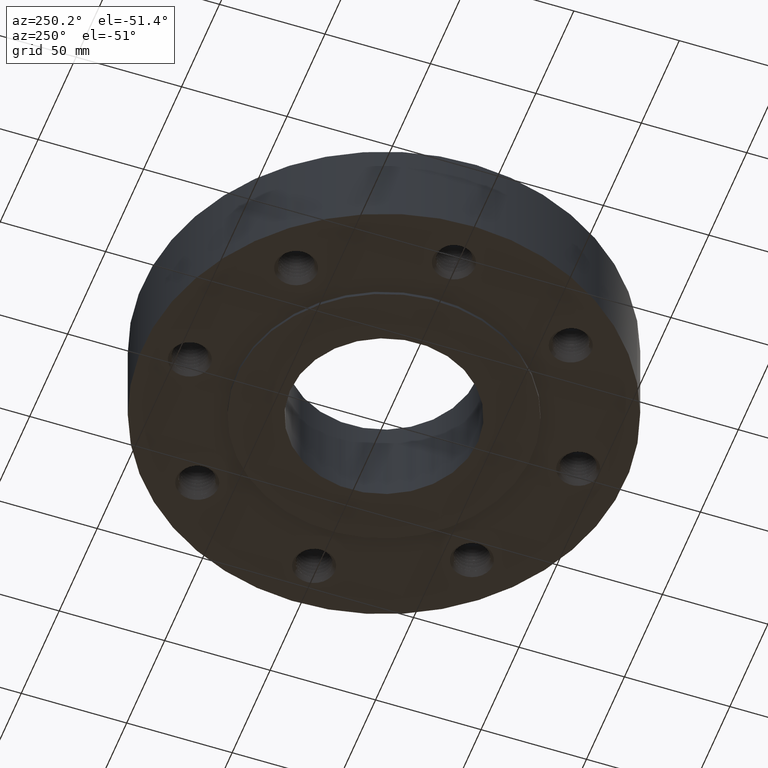
[diagram: clean part render]
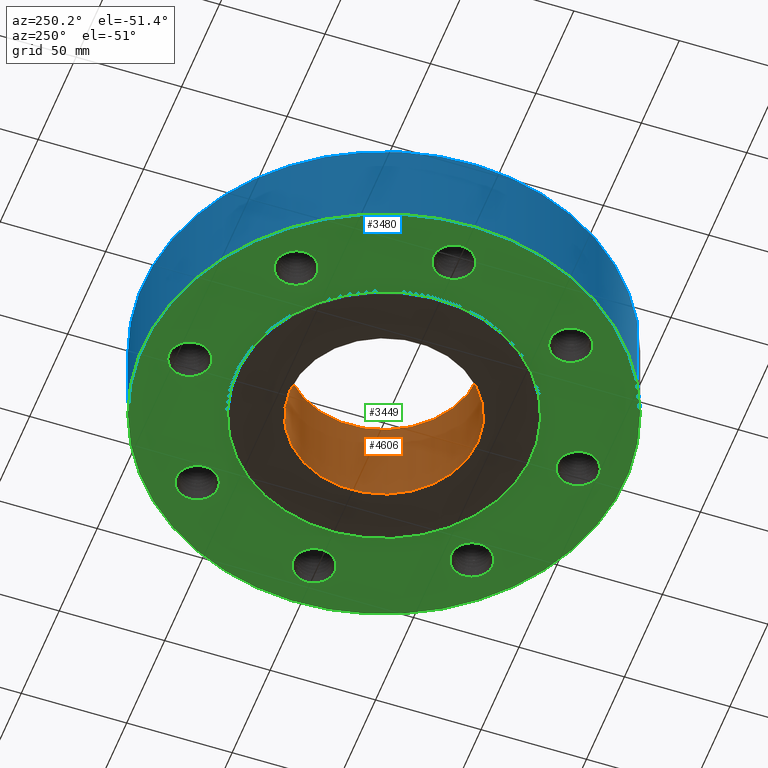
[diagram: same view with three faces highlighted in distinct colors, each labeled with its STEP entity id]
A machine part, auxiliary view with three faces highlighted in distinct colors.
Their STEP definitions:

[orange] entity #4606 — the highlighted cylindrical surface (partial cylindrical patch) has radius 44.45 mm, axis along (0, 0, -1).
#4559=AXIS2_PLACEMENT_3D('Circle Axis2P3D',#4557,#4558,$) ;
#4579=AXIS2_PLACEMENT_3D('Cylinder Axis2P3D',#4576,#4577,#4578) ;
#4583=AXIS2_PLACEMENT_3D('Circle Axis2P3D',#4581,#4582,$) ;
#4557=CARTESIAN_POINT('Axis2P3D Location',(0.,0.,-0.0625000000003)) ;
#4561=CARTESIAN_POINT('Vertex',(0.838994692561,1.53576948331,-0.0625000000002)) ;
#4563=CARTESIAN_POINT('Vertex',(-0.838994692561,-1.53576948331,-0.0625000000002)) ;
#4576=CARTESIAN_POINT('Axis2P3D Location',(0.,0.,0.843750000003)) ;
#4581=CARTESIAN_POINT('Axis2P3D Location',(0.,0.,1.75000000001)) ;
#4585=CARTESIAN_POINT('Vertex',(0.838994692561,1.53576948331,1.75000000001)) ;
#4587=CARTESIAN_POINT('Vertex',(-0.838994692561,-1.53576948331,1.75000000001)) ;
#4590=CARTESIAN_POINT('Line Origine',(0.838994692561,1.53576948331,0.843750000003)) ;
#4595=CARTESIAN_POINT('Line Origine',(-0.838994692561,-1.53576948331,0.843750000003)) ;
#4558=DIRECTION('Axis2P3D Direction',(0.,0.,-0.0393700787402)) ;
#4577=DIRECTION('Axis2P3D Direction',(0.,0.,-0.0393700787402)) ;
#4578=DIRECTION('Axis2P3D XDirection',(-0.0188750212049,-0.0345504945626,0.)) ;
#4582=DIRECTION('Axis2P3D Direction',(0.,0.,-0.0393700787402)) ;
#4591=DIRECTION('Vector Direction',(0.,0.,-0.0393700787402)) ;
#4596=DIRECTION('Vector Direction',(0.,0.,-0.0393700787402)) ;
#4592=VECTOR('Line Direction',#4591,0.0393700787402) ;
#4597=VECTOR('Line Direction',#4596,0.0393700787402) ;
#4601=ORIENTED_EDGE('',*,*,#4589,.F.) ;
#4602=ORIENTED_EDGE('',*,*,#4594,.T.) ;
#4603=ORIENTED_EDGE('',*,*,#4565,.T.) ;
#4604=ORIENTED_EDGE('',*,*,#4599,.F.) ;
#4606=ADVANCED_FACE('PartBody',(#4605),#4580,.F.) ;
#4560=CIRCLE('generated circle',#4559,1.75000000001) ;
#4584=CIRCLE('generated circle',#4583,1.75000000001) ;
#4580=CYLINDRICAL_SURFACE('generated cylinder',#4579,1.75000000001) ;
#4565=EDGE_CURVE('',#4562,#4564,#4560,.T.) ;
#4589=EDGE_CURVE('',#4586,#4588,#4584,.T.) ;
#4594=EDGE_CURVE('',#4586,#4562,#4593,.T.) ;
#4599=EDGE_CURVE('',#4588,#4564,#4598,.T.) ;
#4600=EDGE_LOOP('',(#4601,#4602,#4603,#4604)) ;
#4605=FACE_OUTER_BOUND('',#4600,.T.) ;
#4593=LINE('Line',#4590,#4592) ;
#4598=LINE('Line',#4595,#4597) ;
#4562=VERTEX_POINT('',#4561) ;
#4564=VERTEX_POINT('',#4563) ;
#4586=VERTEX_POINT('',#4585) ;
#4588=VERTEX_POINT('',#4587) ;

[blue] entity #3480 — the highlighted cylindrical surface (partial cylindrical patch) has radius 114.3 mm, axis along (0, 0, -1).
#3285=AXIS2_PLACEMENT_3D('Circle Axis2P3D',#3283,#3284,$) ;
#3453=AXIS2_PLACEMENT_3D('Cylinder Axis2P3D',#3450,#3451,#3452) ;
#3464=AXIS2_PLACEMENT_3D('Circle Axis2P3D',#3462,#3463,$) ;
#3283=CARTESIAN_POINT('Axis2P3D Location',(0.,0.,0.)) ;
#3287=CARTESIAN_POINT('Vertex',(-2.15741492373,-3.94912152852,-3.91637728372E-014)) ;
#3289=CARTESIAN_POINT('Vertex',(2.15741492373,3.94912152852,-3.91637728372E-014)) ;
#3450=CARTESIAN_POINT('Axis2P3D Location',(0.,0.,0.843750000003)) ;
#3455=CARTESIAN_POINT('Line Origine',(-2.15741492373,-3.94912152852,0.875000000003)) ;
#3459=CARTESIAN_POINT('Vertex',(-2.15741492373,-3.94912152852,1.75000000001)) ;
#3462=CARTESIAN_POINT('Axis2P3D Location',(0.,0.,1.75000000001)) ;
#3466=CARTESIAN_POINT('Vertex',(2.15741492373,3.94912152852,1.75000000001)) ;
#3469=CARTESIAN_POINT('Line Origine',(2.15741492373,3.94912152852,0.875000000003)) ;
#3284=DIRECTION('Axis2P3D Direction',(0.,0.,-0.0393700787402)) ;
#3451=DIRECTION('Axis2P3D Direction',(0.,0.,-0.0393700787402)) ;
#3452=DIRECTION('Axis2P3D XDirection',(0.0188750212049,0.0345504945626,0.)) ;
#3456=DIRECTION('Vector Direction',(0.,0.,-0.0393700787402)) ;
#3463=DIRECTION('Axis2P3D Direction',(0.,0.,-0.0393700787402)) ;
#3470=DIRECTION('Vector Direction',(0.,0.,-0.0393700787402)) ;
#3457=VECTOR('Line Direction',#3456,0.0393700787402) ;
#3471=VECTOR('Line Direction',#3470,0.0393700787402) ;
#3475=ORIENTED_EDGE('',*,*,#3291,.F.) ;
#3476=ORIENTED_EDGE('',*,*,#3461,.T.) ;
#3477=ORIENTED_EDGE('',*,*,#3468,.T.) ;
#3478=ORIENTED_EDGE('',*,*,#3473,.F.) ;
#3480=ADVANCED_FACE('PartBody',(#3479),#3454,.T.) ;
#3286=CIRCLE('generated circle',#3285,4.50000000002) ;
#3465=CIRCLE('generated circle',#3464,4.50000000002) ;
#3454=CYLINDRICAL_SURFACE('generated cylinder',#3453,4.50000000002) ;
#3291=EDGE_CURVE('',#3288,#3290,#3286,.T.) ;
#3461=EDGE_CURVE('',#3288,#3460,#3458,.F.) ;
#3468=EDGE_CURVE('',#3460,#3467,#3465,.T.) ;
#3473=EDGE_CURVE('',#3290,#3467,#3472,.F.) ;
#3474=EDGE_LOOP('',(#3475,#3476,#3477,#3478)) ;
#3479=FACE_OUTER_BOUND('',#3474,.T.) ;
#3458=LINE('Line',#3455,#3457) ;
#3472=LINE('Line',#3469,#3471) ;
#3288=VERTEX_POINT('',#3287) ;
#3290=VERTEX_POINT('',#3289) ;
#3460=VERTEX_POINT('',#3459) ;
#3467=VERTEX_POINT('',#3466) ;

[green] entity #3449 — the highlighted planar face has unit normal (0, 0, -1).
#3203=AXIS2_PLACEMENT_3D('Circle Axis2P3D',#3201,#3202,$) ;
#3267=AXIS2_PLACEMENT_3D('Circle Axis2P3D',#3265,#3266,$) ;
#3281=AXIS2_PLACEMENT_3D('Plane Axis2P3D',#3278,#3279,#3280) ;
#3285=AXIS2_PLACEMENT_3D('Circle Axis2P3D',#3283,#3284,$) ;
#3294=AXIS2_PLACEMENT_3D('Circle Axis2P3D',#3292,#3293,$) ;
#3307=AXIS2_PLACEMENT_3D('Circle Axis2P3D',#3305,#3306,$) ;
#3316=AXIS2_PLACEMENT_3D('Circle Axis2P3D',#3314,#3315,$) ;
#3325=AXIS2_PLACEMENT_3D('Circle Axis2P3D',#3323,#3324,$) ;
#3334=AXIS2_PLACEMENT_3D('Circle Axis2P3D',#3332,#3333,$) ;
#3343=AXIS2_PLACEMENT_3D('Circle Axis2P3D',#3341,#3342,$) ;
#3352=AXIS2_PLACEMENT_3D('Circle Axis2P3D',#3350,#3351,$) ;
#3361=AXIS2_PLACEMENT_3D('Circle Axis2P3D',#3359,#3360,$) ;
#3370=AXIS2_PLACEMENT_3D('Circle Axis2P3D',#3368,#3369,$) ;
#3379=AXIS2_PLACEMENT_3D('Circle Axis2P3D',#3377,#3378,$) ;
#3388=AXIS2_PLACEMENT_3D('Circle Axis2P3D',#3386,#3387,$) ;
#3397=AXIS2_PLACEMENT_3D('Circle Axis2P3D',#3395,#3396,$) ;
#3406=AXIS2_PLACEMENT_3D('Circle Axis2P3D',#3404,#3405,$) ;
#3415=AXIS2_PLACEMENT_3D('Circle Axis2P3D',#3413,#3414,$) ;
#3424=AXIS2_PLACEMENT_3D('Circle Axis2P3D',#3422,#3423,$) ;
#3433=AXIS2_PLACEMENT_3D('Circle Axis2P3D',#3431,#3432,$) ;
#3442=AXIS2_PLACEMENT_3D('Circle Axis2P3D',#3440,#3441,$) ;
#3198=CARTESIAN_POINT('Vertex',(2.90376411583,2.74927919079,0.)) ;
#3201=CARTESIAN_POINT('Axis2P3D Location',(2.56326208181,2.56326208181,0.)) ;
#3205=CARTESIAN_POINT('Vertex',(2.2227600478,2.37724497283,0.)) ;
#3265=CARTESIAN_POINT('Axis2P3D Location',(2.56326208181,2.56326208181,0.)) ;
#3278=CARTESIAN_POINT('Axis2P3D Location',(0.,4.50000000002,0.)) ;
#3283=CARTESIAN_POINT('Axis2P3D Location',(0.,0.,0.)) ;
#3287=CARTESIAN_POINT('Vertex',(-2.15741492373,-3.94912152852,-3.91637728372E-014)) ;
#3289=CARTESIAN_POINT('Vertex',(2.15741492373,3.94912152852,-3.91637728372E-014)) ;
#3292=CARTESIAN_POINT('Axis2P3D Location',(0.,0.,0.)) ;
#3305=CARTESIAN_POINT('Axis2P3D Location',(0.,0.,0.)) ;
#3309=CARTESIAN_POINT('Vertex',(1.31842023117,2.41335204521,-2.83937353069E-014)) ;
#3311=CARTESIAN_POINT('Vertex',(-1.31842023117,-2.41335204521,-2.83937353069E-014)) ;
#3314=CARTESIAN_POINT('Axis2P3D Location',(0.,0.,0.)) ;
#3323=CARTESIAN_POINT('Axis2P3D Location',(3.62500000001,1.1189649382E-015,0.)) ;
#3327=CARTESIAN_POINT('Vertex',(3.99730525645,-0.109237338084,0.)) ;
#3329=CARTESIAN_POINT('Vertex',(3.25269474358,0.109237338084,0.)) ;
#3332=CARTESIAN_POINT('Axis2P3D Location',(3.62500000001,2.23792987641E-015,0.)) ;
#3341=CARTESIAN_POINT('Axis2P3D Location',(2.56326208181,-2.56326208181,0.)) ;
#3345=CARTESIAN_POINT('Vertex',(2.74927919079,-2.90376411583,0.)) ;
#3347=CARTESIAN_POINT('Vertex',(2.37724497283,-2.2227600478,0.)) ;
#3350=CARTESIAN_POINT('Axis2P3D Location',(2.56326208181,-2.56326208181,0.)) ;
#3359=CARTESIAN_POINT('Axis2P3D Location',(1.01406197525E-015,-3.62500000001,0.)) ;
#3363=CARTESIAN_POINT('Vertex',(-0.109237338084,-3.99730525645,0.)) ;
#3365=CARTESIAN_POINT('Vertex',(0.109237338084,-3.25269474358,0.)) ;
#3368=CARTESIAN_POINT('Axis2P3D Location',(1.01406197525E-015,-3.62500000001,0.)) ;
#3377=CARTESIAN_POINT('Axis2P3D Location',(-2.56326208181,-2.56326208181,0.)) ;
#3381=CARTESIAN_POINT('Vertex',(-2.90376411583,-2.74927919079,0.)) ;
#3383=CARTESIAN_POINT('Vertex',(-2.2227600478,-2.37724497283,-8.74191357973E-018)) ;
#3386=CARTESIAN_POINT('Axis2P3D Location',(-2.56326208181,-2.56326208181,0.)) ;
#3395=CARTESIAN_POINT('Axis2P3D Location',(-3.62500000001,-1.1189649382E-015,0.)) ;
#3399=CARTESIAN_POINT('Vertex',(-3.99730525645,0.109237338084,0.)) ;
#3401=CARTESIAN_POINT('Vertex',(-3.25269474358,-0.109237338084,0.)) ;
#3404=CARTESIAN_POINT('Axis2P3D Location',(-3.62500000001,-1.1189649382E-015,0.)) ;
#3413=CARTESIAN_POINT('Axis2P3D Location',(-2.56326208181,2.56326208181,0.)) ;
#3417=CARTESIAN_POINT('Vertex',(-2.74927919079,2.90376411583,0.)) ;
#3419=CARTESIAN_POINT('Vertex',(-2.37724497283,2.2227600478,0.)) ;
#3422=CARTESIAN_POINT('Axis2P3D Location',(-2.56326208181,2.56326208181,0.)) ;
#3431=CARTESIAN_POINT('Axis2P3D Location',(-1.71341506163E-015,3.62500000001,0.)) ;
#3435=CARTESIAN_POINT('Vertex',(0.109237338084,3.99730525645,0.)) ;
#3437=CARTESIAN_POINT('Vertex',(-0.109237338084,3.25269474358,-6.11933950581E-017)) ;
#3440=CARTESIAN_POINT('Axis2P3D Location',(-1.67844740731E-015,3.62500000001,0.)) ;
#3202=DIRECTION('Axis2P3D Direction',(0.,0.,-0.0393700787402)) ;
#3266=DIRECTION('Axis2P3D Direction',(0.,0.,-0.0393700787402)) ;
#3279=DIRECTION('Axis2P3D Direction',(0.,0.,-0.0393700787402)) ;
#3280=DIRECTION('Axis2P3D XDirection',(0.0393700787402,0.,0.)) ;
#3284=DIRECTION('Axis2P3D Direction',(0.,0.,-0.0393700787402)) ;
#3293=DIRECTION('Axis2P3D Direction',(0.,0.,-0.0393700787402)) ;
#3306=DIRECTION('Axis2P3D Direction',(0.,0.,-0.0393700787402)) ;
#3315=DIRECTION('Axis2P3D Direction',(0.,0.,-0.0393700787402)) ;
#3324=DIRECTION('Axis2P3D Direction',(0.,0.,-0.0393700787402)) ;
#3333=DIRECTION('Axis2P3D Direction',(0.,0.,-0.0393700787402)) ;
#3342=DIRECTION('Axis2P3D Direction',(0.,0.,-0.0393700787402)) ;
#3351=DIRECTION('Axis2P3D Direction',(0.,0.,-0.0393700787402)) ;
#3360=DIRECTION('Axis2P3D Direction',(0.,0.,-0.0393700787402)) ;
#3369=DIRECTION('Axis2P3D Direction',(0.,0.,-0.0393700787402)) ;
#3378=DIRECTION('Axis2P3D Direction',(0.,0.,-0.0393700787402)) ;
#3387=DIRECTION('Axis2P3D Direction',(0.,0.,-0.0393700787402)) ;
#3396=DIRECTION('Axis2P3D Direction',(0.,0.,-0.0393700787402)) ;
#3405=DIRECTION('Axis2P3D Direction',(0.,0.,-0.0393700787402)) ;
#3414=DIRECTION('Axis2P3D Direction',(0.,0.,-0.0393700787402)) ;
#3423=DIRECTION('Axis2P3D Direction',(0.,0.,-0.0393700787402)) ;
#3432=DIRECTION('Axis2P3D Direction',(0.,0.,-0.0393700787402)) ;
#3441=DIRECTION('Axis2P3D Direction',(0.,0.,-0.0393700787402)) ;
#3298=ORIENTED_EDGE('',*,*,#3291,.T.) ;
#3299=ORIENTED_EDGE('',*,*,#3296,.T.) ;
#3302=ORIENTED_EDGE('',*,*,#3269,.F.) ;
#3303=ORIENTED_EDGE('',*,*,#3207,.F.) ;
#3320=ORIENTED_EDGE('',*,*,#3313,.F.) ;
#3321=ORIENTED_EDGE('',*,*,#3318,.F.) ;
#3338=ORIENTED_EDGE('',*,*,#3331,.F.) ;
#3339=ORIENTED_EDGE('',*,*,#3336,.F.) ;
#3356=ORIENTED_EDGE('',*,*,#3349,.F.) ;
#3357=ORIENTED_EDGE('',*,*,#3354,.F.) ;
#3374=ORIENTED_EDGE('',*,*,#3367,.F.) ;
#3375=ORIENTED_EDGE('',*,*,#3372,.F.) ;
#3392=ORIENTED_EDGE('',*,*,#3385,.F.) ;
#3393=ORIENTED_EDGE('',*,*,#3390,.F.) ;
#3410=ORIENTED_EDGE('',*,*,#3403,.F.) ;
#3411=ORIENTED_EDGE('',*,*,#3408,.F.) ;
#3428=ORIENTED_EDGE('',*,*,#3421,.F.) ;
#3429=ORIENTED_EDGE('',*,*,#3426,.F.) ;
#3446=ORIENTED_EDGE('',*,*,#3439,.F.) ;
#3447=ORIENTED_EDGE('',*,*,#3444,.F.) ;
#3304=FACE_BOUND('',#3301,.T.) ;
#3322=FACE_BOUND('',#3319,.T.) ;
#3340=FACE_BOUND('',#3337,.T.) ;
#3358=FACE_BOUND('',#3355,.T.) ;
#3376=FACE_BOUND('',#3373,.T.) ;
#3394=FACE_BOUND('',#3391,.T.) ;
#3412=FACE_BOUND('',#3409,.T.) ;
#3430=FACE_BOUND('',#3427,.T.) ;
#3448=FACE_BOUND('',#3445,.T.) ;
#3449=ADVANCED_FACE('PartBody',(#3300,#3304,#3322,#3340,#3358,#3376,#3394,#3412,#3430,#3448),#3282,.T.) ;
#3204=CIRCLE('generated circle',#3203,0.388000000002) ;
#3268=CIRCLE('generated circle',#3267,0.388000000002) ;
#3286=CIRCLE('generated circle',#3285,4.50000000002) ;
#3295=CIRCLE('generated circle',#3294,4.50000000002) ;
#3308=CIRCLE('generated circle',#3307,2.75000000001) ;
#3317=CIRCLE('generated circle',#3316,2.75000000001) ;
#3326=CIRCLE('generated circle',#3325,0.388000000002) ;
#3335=CIRCLE('generated circle',#3334,0.388000000002) ;
#3344=CIRCLE('generated circle',#3343,0.388000000002) ;
#3353=CIRCLE('generated circle',#3352,0.388000000002) ;
#3362=CIRCLE('generated circle',#3361,0.388000000002) ;
#3371=CIRCLE('generated circle',#3370,0.388000000002) ;
#3380=CIRCLE('generated circle',#3379,0.388000000002) ;
#3389=CIRCLE('generated circle',#3388,0.388000000002) ;
#3398=CIRCLE('generated circle',#3397,0.388000000002) ;
#3407=CIRCLE('generated circle',#3406,0.388000000002) ;
#3416=CIRCLE('generated circle',#3415,0.388000000002) ;
#3425=CIRCLE('generated circle',#3424,0.388000000002) ;
#3434=CIRCLE('generated circle',#3433,0.388000000002) ;
#3443=CIRCLE('generated circle',#3442,0.388000000002) ;
#3207=EDGE_CURVE('',#3199,#3206,#3204,.T.) ;
#3269=EDGE_CURVE('',#3206,#3199,#3268,.T.) ;
#3291=EDGE_CURVE('',#3288,#3290,#3286,.T.) ;
#3296=EDGE_CURVE('',#3290,#3288,#3295,.T.) ;
#3313=EDGE_CURVE('',#3310,#3312,#3308,.T.) ;
#3318=EDGE_CURVE('',#3312,#3310,#3317,.T.) ;
#3331=EDGE_CURVE('',#3328,#3330,#3326,.T.) ;
#3336=EDGE_CURVE('',#3330,#3328,#3335,.T.) ;
#3349=EDGE_CURVE('',#3346,#3348,#3344,.T.) ;
#3354=EDGE_CURVE('',#3348,#3346,#3353,.T.) ;
#3367=EDGE_CURVE('',#3364,#3366,#3362,.T.) ;
#3372=EDGE_CURVE('',#3366,#3364,#3371,.T.) ;
#3385=EDGE_CURVE('',#3382,#3384,#3380,.T.) ;
#3390=EDGE_CURVE('',#3384,#3382,#3389,.T.) ;
#3403=EDGE_CURVE('',#3400,#3402,#3398,.T.) ;
#3408=EDGE_CURVE('',#3402,#3400,#3407,.T.) ;
#3421=EDGE_CURVE('',#3418,#3420,#3416,.T.) ;
#3426=EDGE_CURVE('',#3420,#3418,#3425,.T.) ;
#3439=EDGE_CURVE('',#3436,#3438,#3434,.T.) ;
#3444=EDGE_CURVE('',#3438,#3436,#3443,.T.) ;
#3297=EDGE_LOOP('',(#3298,#3299)) ;
#3301=EDGE_LOOP('',(#3302,#3303)) ;
#3319=EDGE_LOOP('',(#3320,#3321)) ;
#3337=EDGE_LOOP('',(#3338,#3339)) ;
#3355=EDGE_LOOP('',(#3356,#3357)) ;
#3373=EDGE_LOOP('',(#3374,#3375)) ;
#3391=EDGE_LOOP('',(#3392,#3393)) ;
#3409=EDGE_LOOP('',(#3410,#3411)) ;
#3427=EDGE_LOOP('',(#3428,#3429)) ;
#3445=EDGE_LOOP('',(#3446,#3447)) ;
#3300=FACE_OUTER_BOUND('',#3297,.T.) ;
#3282=PLANE('',#3281) ;
#3199=VERTEX_POINT('',#3198) ;
#3206=VERTEX_POINT('',#3205) ;
#3288=VERTEX_POINT('',#3287) ;
#3290=VERTEX_POINT('',#3289) ;
#3310=VERTEX_POINT('',#3309) ;
#3312=VERTEX_POINT('',#3311) ;
#3328=VERTEX_POINT('',#3327) ;
#3330=VERTEX_POINT('',#3329) ;
#3346=VERTEX_POINT('',#3345) ;
#3348=VERTEX_POINT('',#3347) ;
#3364=VERTEX_POINT('',#3363) ;
#3366=VERTEX_POINT('',#3365) ;
#3382=VERTEX_POINT('',#3381) ;
#3384=VERTEX_POINT('',#3383) ;
#3400=VERTEX_POINT('',#3399) ;
#3402=VERTEX_POINT('',#3401) ;
#3418=VERTEX_POINT('',#3417) ;
#3420=VERTEX_POINT('',#3419) ;
#3436=VERTEX_POINT('',#3435) ;
#3438=VERTEX_POINT('',#3437) ;